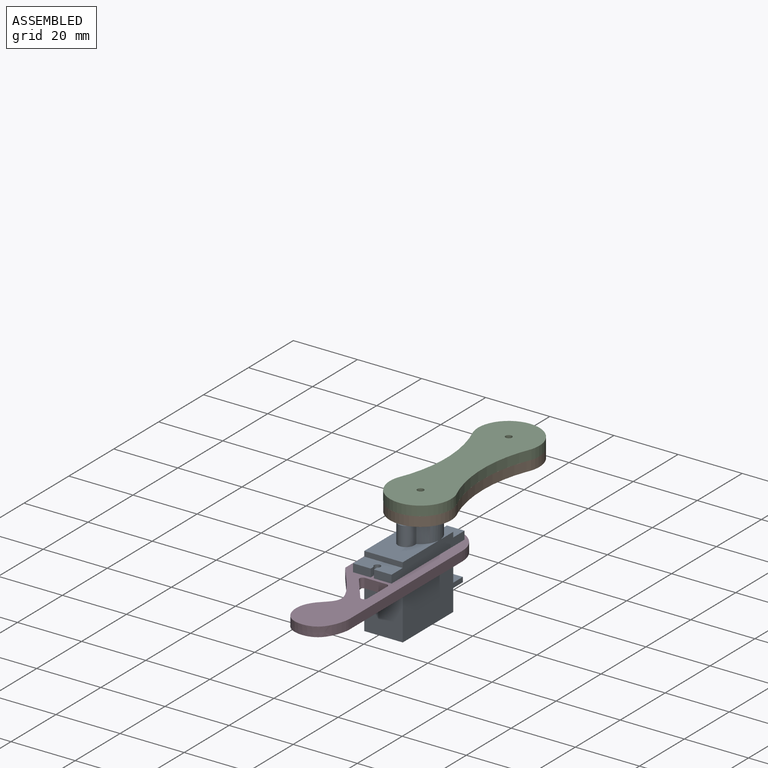
[diagram: assembled view]
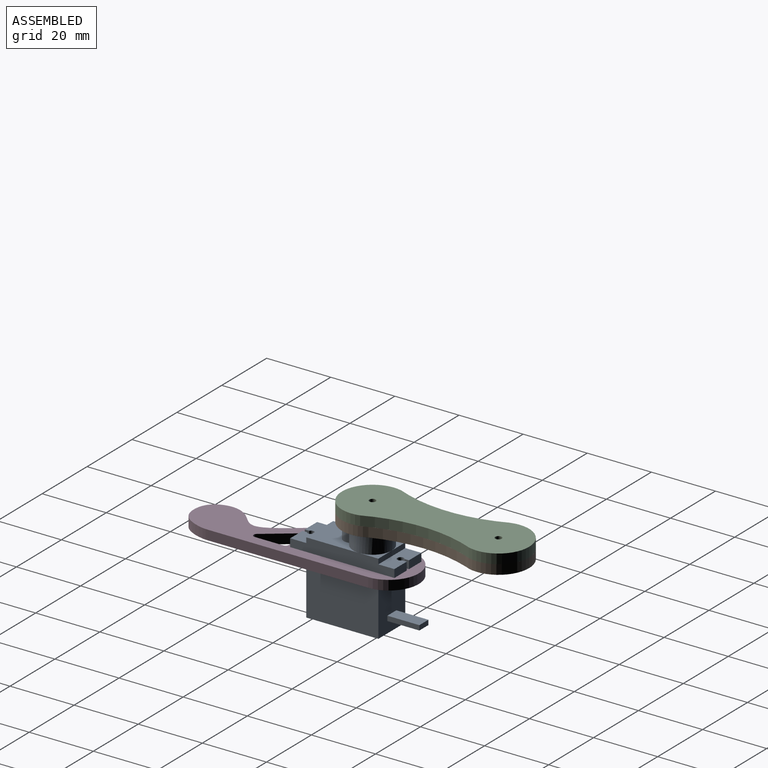
[diagram: assembled view, second angle]
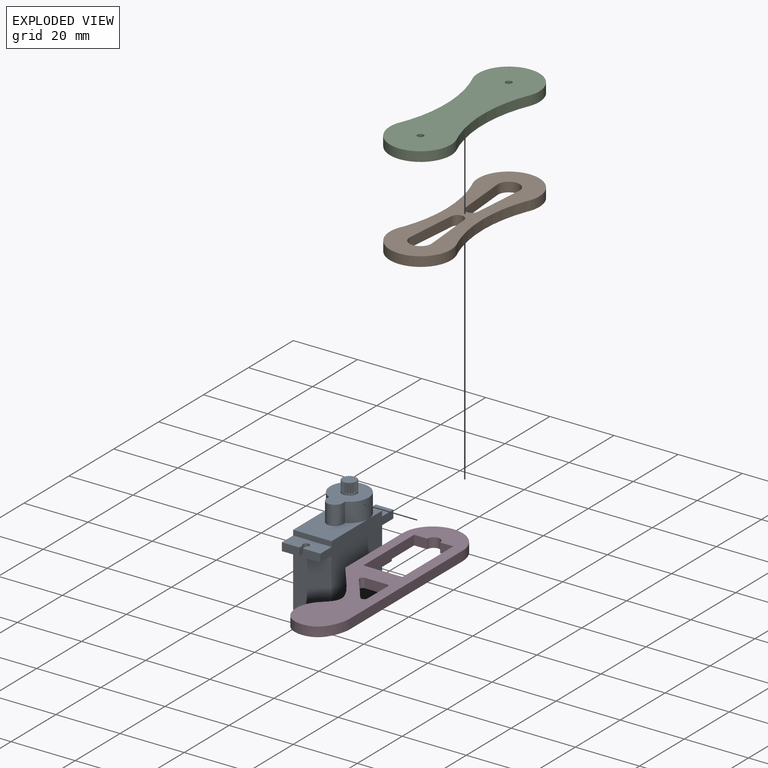
[diagram: exploded view]
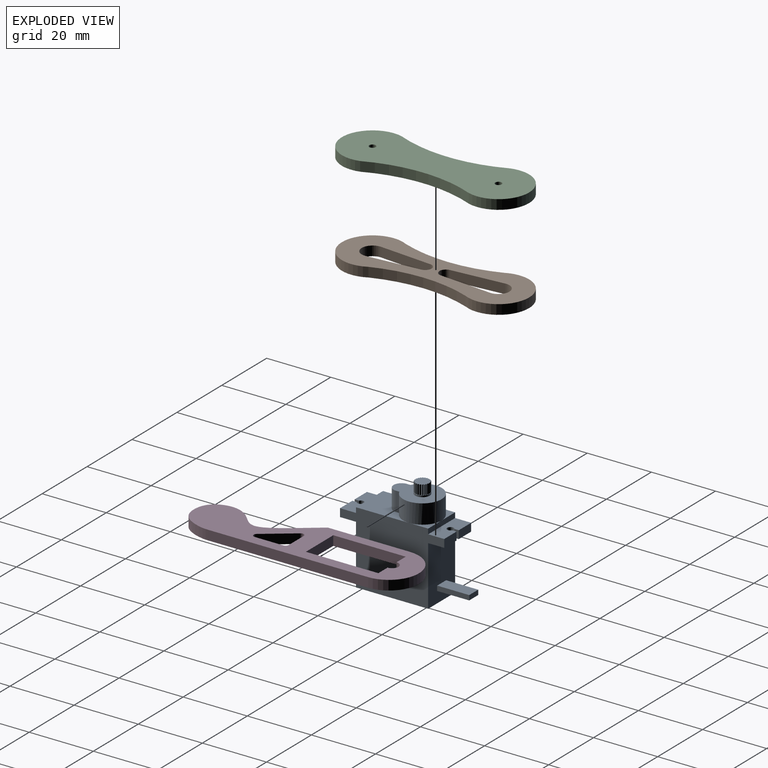
[diagram: exploded view, second angle]
ASSEMBLY  parts=4 mates=3
PART A: 105 faces, bbox 37.5x12x32.1 mm
  f0: plane 18.5x12mm, normal (1,0,0), area 216mm2, adj f11,f17,f21,f99,f100,f101,f102,f103
  f1: plane 12x5mm, normal (0,0,-1), area 55.6mm2, adj f11,f12,f13,f14,f15,f16,f17,f96
  f2: cylinder r=2.27mm len=4.55mm, axis (0,0,-1), area 7.1mm2, adj f3,f94
  f3: plane 15x12mm, normal (0,0,1), area 110mm2, adj f2,f24,f25,f26,f27
  f4: plane 6x6mm, normal (0,0,1), area 7.7mm2, adj f11,f23,f26
  f5: plane 16.5x12mm, normal (0,0,1), area 128.2mm2, adj f11,f17,f22,f24,f25,f26,f27
  f6: plane 6x6mm, normal (0,0,1), area 7.7mm2, adj f17,f23,f26
  f7: plane 12x5mm, normal (0,0,1), area 55.6mm2, adj f11,f12,f13,f14,f15,f16,f17,f22
  f8: cylinder r=1mm len=2.5mm, axis (0,0,-1), area 13.1mm2, adj f9,f19,f20,f21
  f9: plane 2.5x1.38mm, normal (0,-1,0), area 3.5mm2, adj f8,f10,f20,f21
  f10: plane 5.5x2.5mm, normal (1,0,0), area 13.7mm2, adj f9,f11,f20,f21
  f11: plane 32.5x22.6mm, normal (0,1,0), area 533.5mm2, adj f0,f1,f4,f5,f7,f10,f12,f20
  f12: plane 5.5x2.5mm, normal (-1,0,0), area 13.7mm2, adj f1,f7,f11,f13
  f13: plane 2.5x1.28mm, normal (0,-1,0), area 3.2mm2, adj f1,f7,f12,f97
  f14: cylinder r=1mm len=2.5mm, axis (0,0,-1), area 12.6mm2, adj f1,f7,f96,f97
  f15: plane 2.5x1.28mm, normal (0,1,0), area 3.2mm2, adj f1,f7,f16,f96
  f16: plane 5.5x2.5mm, normal (-1,0,0), area 13.7mm2, adj f1,f7,f15,f17
  f17: plane 32.5x22.6mm, normal (0,-1,0), area 533.5mm2, adj f0,f1,f5,f6,f7,f16,f18,f20
  f18: plane 5.5x2.5mm, normal (1,0,0), area 13.7mm2, adj f17,f19,f20,f21
  f19: plane 2.5x1.38mm, normal (0,1,0), area 3.5mm2, adj f8,f18,f20,f21
  f20: plane 12x5mm, normal (0,0,1), area 55.6mm2, adj f8,f9,f10,f11,f17,f18,f19,f23
  f21: plane 12x5mm, normal (0,0,-1), area 55.6mm2, adj f0,f8,f9,f10,f11,f17,f18,f19
  f22: plane 12x1.6mm, normal (-1,0,0), area 19.2mm2, adj f5,f7,f11,f17
  f23: plane 12x1.6mm, normal (1,0,0), area 19.2mm2, adj f4,f6,f11,f17,f20
  f24: cylinder r=2.5mm len=6mm, axis (0,0,-1), area 47.1mm2, adj f3,f5,f25,f27
  f25: plane 6x1.05mm, normal (0,-1,0), area 6.3mm2, adj f3,f5,f24,f26
  f26: cylinder r=6mm len=12mm, axis (0,0,-1), area 195.3mm2, adj f3,f4,f5,f6,f25,f27
  f27: plane 6x1.05mm, normal (0,1,0), area 6.3mm2, adj f3,f5,f24,f26
  f28: plane 3x0.25mm, normal (-0.71,0.71,0), area 1.1mm2, adj f29,f93,f94,f95
  f29: plane 3x0.31mm, normal (0.48,0.88,0), area 1.1mm2, adj f28,f30,f94,f95
  f30: cylinder r=0.05mm len=3mm, axis (0,0,1), area 0.2mm2, adj f29,f31,f94,f95
  f31: plane 3x0.31mm, normal (-0.88,0.48,0), area 1.1mm2, adj f30,f32,f94,f95
  f32: plane 3x0.35mm, normal (0.21,0.98,0), area 1.1mm2, adj f31,f33,f94,f95
  f33: cylinder r=0.05mm len=3mm, axis (0,0,1), area 0.2mm2, adj f32,f34,f94,f95
  f34: plane 3x0.35mm, normal (-0.98,0.21,0), area 1.1mm2, adj f33,f35,f94,f95
  f35: plane 3x0.35mm, normal (-0.07,1,0), area 1.1mm2, adj f34,f36,f94,f95
  f36: cylinder r=0.05mm len=3mm, axis (0,0,1), area 0.2mm2, adj f35,f37,f94,f95
  f37: plane 3x0.35mm, normal (-1,-0.07,0), area 1.1mm2, adj f36,f38,f94,f95
  f38: plane 3x0.33mm, normal (-0.35,0.94,0), area 1.1mm2, adj f37,f39,f94,f95
  f39: cylinder r=0.05mm len=3mm, axis (0,0,1), area 0.2mm2, adj f38,f40,f94,f95
  f40: plane 3x0.33mm, normal (-0.94,-0.35,0), area 1.1mm2, adj f39,f41,f94,f95
  f41: plane 3x0.28mm, normal (-0.6,0.8,0), area 1.1mm2, adj f40,f42,f94,f95
  f42: cylinder r=0.05mm len=3mm, axis (0,0,1), area 0.2mm2, adj f41,f43,f94,f95
  f43: plane 3x0.28mm, normal (-0.8,-0.6,0), area 1.1mm2, adj f42,f44,f94,f95
  f44: plane 3x0.28mm, normal (-0.8,0.6,0), area 1.1mm2, adj f43,f45,f94,f95
  f45: cylinder r=0.05mm len=3mm, axis (0,0,1), area 0.2mm2, adj f44,f46,f94,f95
  f46: plane 3x0.28mm, normal (-0.6,-0.8,0), area 1.1mm2, adj f45,f47,f94,f95
  f47: plane 3x0.33mm, normal (-0.94,0.35,0), area 1.1mm2, adj f46,f48,f94,f95
  f48: cylinder r=0.05mm len=3mm, axis (0,0,1), area 0.2mm2, adj f47,f49,f94,f95
  f49: plane 3x0.33mm, normal (-0.35,-0.94,0), area 1.1mm2, adj f48,f50,f94,f95
  f50: plane 3x0.35mm, normal (-1,0.07,0), area 1.1mm2, adj f49,f51,f94,f95
  f51: cylinder r=0.05mm len=3mm, axis (0,0,1), area 0.2mm2, adj f50,f52,f94,f95
  f52: plane 3x0.35mm, normal (-0.07,-1,0), area 1.1mm2, adj f51,f53,f94,f95
  f53: plane 3x0.35mm, normal (-0.98,-0.21,0), area 1.1mm2, adj f52,f54,f94,f95
  f54: cylinder r=0.05mm len=3mm, axis (0,0,1), area 0.2mm2, adj f53,f55,f94,f95
  f55: plane 3x0.35mm, normal (0.21,-0.98,0), area 1.1mm2, adj f54,f56,f94,f95
  f56: plane 3x0.31mm, normal (-0.88,-0.48,0), area 1.1mm2, adj f55,f57,f94,f95
  f57: cylinder r=0.05mm len=3mm, axis (0,0,1), area 0.2mm2, adj f56,f58,f94,f95
  f58: plane 3x0.31mm, normal (0.48,-0.88,0), area 1.1mm2, adj f57,f59,f94,f95
  f59: plane 3x0.25mm, normal (-0.71,-0.71,0), area 1.1mm2, adj f58,f60,f94,f95
  f60: cylinder r=0.05mm len=3mm, axis (0,0,1), area 0.2mm2, adj f59,f61,f94,f95
  f61: plane 3x0.25mm, normal (0.71,-0.71,0), area 1.1mm2, adj f60,f62,f94,f95
  f62: plane 3x0.31mm, normal (-0.48,-0.88,0), area 1.1mm2, adj f61,f63,f94,f95
  f63: cylinder r=0.05mm len=3mm, axis (0,0,1), area 0.2mm2, adj f62,f64,f94,f95
  f64: plane 3x0.31mm, normal (0.88,-0.48,0), area 1.1mm2, adj f63,f65,f94,f95
  f65: plane 3x0.35mm, normal (-0.21,-0.98,0), area 1.1mm2, adj f64,f66,f94,f95
  f66: cylinder r=0.05mm len=3mm, axis (0,0,1), area 0.2mm2, adj f65,f67,f94,f95
  f67: plane 3x0.35mm, normal (0.98,-0.21,0), area 1.1mm2, adj f66,f68,f94,f95
  f68: plane 3x0.35mm, normal (0.07,-1,0), area 1.1mm2, adj f67,f69,f94,f95
  f69: cylinder r=0.05mm len=3mm, axis (0,0,1), area 0.2mm2, adj f68,f70,f94,f95
  f70: plane 3x0.35mm, normal (1,0.07,0), area 1.1mm2, adj f69,f71,f94,f95
  f71: plane 3x0.33mm, normal (0.35,-0.94,0), area 1.1mm2, adj f70,f72,f94,f95
  f72: cylinder r=0.05mm len=3mm, axis (0,0,1), area 0.2mm2, adj f71,f73,f94,f95
  f73: plane 3x0.33mm, normal (0.94,0.35,0), area 1.1mm2, adj f72,f74,f94,f95
  f74: plane 3x0.28mm, normal (0.6,-0.8,0), area 1.1mm2, adj f73,f75,f94,f95
  f75: cylinder r=0.05mm len=3mm, axis (0,0,1), area 0.2mm2, adj f74,f76,f94,f95
  f76: plane 3x0.28mm, normal (0.8,0.6,0), area 1.1mm2, adj f75,f77,f94,f95
  f77: plane 3x0.28mm, normal (0.8,-0.6,0), area 1.1mm2, adj f76,f78,f94,f95
  f78: cylinder r=0.05mm len=3mm, axis (0,0,1), area 0.2mm2, adj f77,f79,f94,f95
  f79: plane 3x0.28mm, normal (0.6,0.8,0), area 1.1mm2, adj f78,f80,f94,f95
  f80: plane 3x0.33mm, normal (0.94,-0.35,0), area 1.1mm2, adj f79,f81,f94,f95
  f81: cylinder r=0.05mm len=3mm, axis (0,0,1), area 0.2mm2, adj f80,f82,f94,f95
  f82: plane 3x0.33mm, normal (0.35,0.94,0), area 1.1mm2, adj f81,f83,f94,f95
  f83: plane 3x0.35mm, normal (1,-0.07,0), area 1.1mm2, adj f82,f84,f94,f95
  f84: cylinder r=0.05mm len=3mm, axis (0,0,1), area 0.2mm2, adj f83,f85,f94,f95
  f85: plane 3x0.35mm, normal (0.07,1,0), area 1.1mm2, adj f84,f86,f94,f95
  f86: plane 3x0.35mm, normal (0.98,0.21,0), area 1.1mm2, adj f85,f87,f94,f95
  f87: cylinder r=0.05mm len=3mm, axis (0,0,1), area 0.2mm2, adj f86,f88,f94,f95
  f88: plane 3x0.35mm, normal (-0.21,0.98,0), area 1.1mm2, adj f87,f89,f94,f95
  f89: plane 3x0.31mm, normal (0.88,0.48,0), area 1.1mm2, adj f88,f90,f94,f95
  f90: cylinder r=0.05mm len=3mm, axis (0,0,1), area 0.2mm2, adj f89,f91,f94,f95
  f91: plane 3x0.31mm, normal (-0.48,0.88,0), area 1.1mm2, adj f90,f92,f94,f95
  f92: plane 3x0.25mm, normal (0.71,0.71,0), area 1.1mm2, adj f91,f93,f94,f95
  f93: cylinder r=0.05mm len=3mm, axis (0,0,1), area 0.2mm2, adj f28,f92,f94,f95
  f94: plane 4.55x4.55mm, normal (0,0,1), area 2mm2, adj f2,f28,f29,f30,f31,f32,f33,f34
  f95: plane 4.51x4.46mm, normal (0,0,1), area 14.3mm2, adj f28,f29,f30,f31,f32,f33,f34,f35
  f96: cylinder r=0.2mm len=2.5mm, axis (0,0,-1), area 0.5mm2, adj f1,f7,f14,f15
  f97: cylinder r=0.2mm len=2.5mm, axis (0,0,-1), area 0.5mm2, adj f1,f7,f13,f14
  f98: plane 18.5x12mm, normal (-1,0,0), area 222mm2, adj f1,f11,f17,f99
  f99: plane 22.5x12mm, normal (0,0,-1), area 270mm2, adj f0,f11,f17,f98
  f100: plane 10x1.5mm, normal (0,-1,0), area 15mm2, adj f0,f101,f103,f104
  f101: plane 10x4mm, normal (0,0,-1), area 40mm2, adj f0,f100,f102,f104
  f102: plane 10x1.5mm, normal (0,1,0), area 15mm2, adj f0,f101,f103,f104
  f103: plane 10x4mm, normal (0,0,1), area 40mm2, adj f0,f100,f102,f104
  f104: plane 4x1.5mm, normal (1,0,0), area 6mm2, adj f100,f101,f102,f103
PART B: 14 faces, bbox 58.4x19.1x3 mm
  f0: plane 16.28x3mm, normal (0.09,1,0), area 49mm2, adj f1,f11,f12,f13
  f1: cylinder r=2mm len=3.99mm, axis (0,0,-1), area 17.8mm2, adj f0,f2,f12,f13
  f2: plane 16.28x3mm, normal (0.09,-1,0), area 49mm2, adj f1,f11,f12,f13
  f3: plane 16.28x3mm, normal (-0.09,1,0), area 49mm2, adj f4,f9,f12,f13
  f4: cylinder r=3.4mm len=6.8mm, axis (0,0,-1), area 33.8mm2, adj f3,f5,f12,f13
  f5: plane 16.28x3mm, normal (-0.09,-1,0), area 49mm2, adj f4,f9,f12,f13
  f6: cylinder r=9.55mm len=19.1mm, axis (0,0,-1), area 116.7mm2, adj f7,f10,f12,f13
  f7: cylinder r=42.82mm len=30.44mm, axis (0,0,-1), area 93.4mm2, adj f6,f8,f12,f13
  f8: cylinder r=9.55mm len=19.1mm, axis (0,0,-1), area 118.5mm2, adj f7,f10,f12,f13
  f9: cylinder r=2mm len=3.99mm, axis (0,0,-1), area 17.8mm2, adj f3,f5,f12,f13
  f10: cylinder r=42.82mm len=30.44mm, axis (0,0,-1), area 93.4mm2, adj f6,f8,f12,f13
  f11: cylinder r=3.4mm len=6.8mm, axis (0,0,-1), area 33.8mm2, adj f0,f2,f12,f13
  f12: plane 58.38x19.1mm, normal (0,0,1), area 623.3mm2, adj f0,f1,f2,f3,f4,f5,f6,f7
  f13: plane 58.38x19.1mm, normal (0,0,-1), area 623.3mm2, adj f0,f1,f2,f3,f4,f5,f6,f7
PART C: 8 faces, bbox 58.4x19.1x3 mm
  f0: cylinder r=42.82mm len=33.86mm, axis (0,0,1), area 104.4mm2, adj f1,f3,f4,f5
  f1: cylinder r=9.55mm len=19.1mm, axis (0,0,1), area 107.5mm2, adj f0,f2,f4,f5
  f2: cylinder r=42.82mm len=33.86mm, axis (0,0,1), area 104.4mm2, adj f1,f3,f4,f5
  f3: cylinder r=9.55mm len=19.1mm, axis (0,0,1), area 105.5mm2, adj f0,f2,f4,f5
  f4: plane 58.38x19.1mm, normal (0,0,-1), area 843.3mm2, adj f0,f1,f2,f3,f6,f7
  f5: plane 58.38x19.1mm, normal (0,0,1), area 843.3mm2, adj f0,f1,f2,f3,f6,f7
  f6: cylinder r=1mm len=3mm, axis (0,0,1), area 18.8mm2, adj f4,f5
  f7: cylinder r=1mm len=3mm, axis (0,0,1), area 18.8mm2, adj f4,f5
PART D: 18 faces, bbox 18.8x69.9x3 mm
  f0: cylinder r=9.32mm len=18.65mm, axis (0,0,-1), area 87.9mm2, adj f1,f15,f16,f17
  f1: plane 49.86x3mm, normal (-1,0,0), area 149.6mm2, adj f0,f2,f16,f17
  f2: extruded ~34.34x18.65mm, area 173.3mm2, adj f1,f15,f16,f17
  f3: plane 6.67x3mm, normal (0,-1,0), area 20mm2, adj f4,f13,f16,f17
  f4: cylinder r=1mm len=3mm, axis (0,0,-1), area 6.6mm2, adj f3,f5,f16,f17
  f5: plane 8.92x6.67mm, normal (-0.8,0.6,0), area 33.4mm2, adj f4,f6,f16,f17
  f6: cylinder r=1mm len=3mm, axis (0,0,-1), area 7.5mm2, adj f5,f7,f16,f17
  f7: plane 8.92x3mm, normal (1,0,0), area 26.8mm2, adj f6,f13,f16,f17
  f8: plane 4.1x3mm, normal (0,-1,0), area 12.3mm2, adj f9,f14,f16,f17
  f9: cylinder r=2mm len=4mm, axis (0,0,-1), area 18.8mm2, adj f8,f10,f16,f17
  f10: plane 4.1x3mm, normal (0,-1,0), area 12.3mm2, adj f9,f11,f16,f17
  f11: plane 22.6x3mm, normal (-1,0,0), area 67.8mm2, adj f10,f12,f16,f17
  f12: plane 12.2x3mm, normal (0,1,0), area 36.6mm2, adj f11,f14,f16,f17
  f13: cylinder r=1mm len=3mm, axis (0,0,-1), area 4.7mm2, adj f3,f7,f16,f17
  f14: plane 22.6x3mm, normal (1,0,0), area 67.8mm2, adj f8,f12,f16,f17
  f15: plane 25.62x3mm, normal (1,0,0), area 76.9mm2, adj f0,f2,f16,f17
  f16: plane 69.89x18.78mm, normal (0,0,1), area 697.3mm2, adj f0,f1,f2,f3,f4,f5,f6,f7
  f17: plane 69.89x18.78mm, normal (0,0,-1), area 697.3mm2, adj f0,f1,f2,f3,f4,f5,f6,f7
PLACE A rot(axis=(0,0,1),90deg) t=(173.26,106.37,29.09)mm
PLACE B rot(axis=(0.71,-0.71,0),180deg) t=(289.17,210.19,29.09)mm
PLACE C rot(axis=(0.71,-0.71,0),180deg) t=(289.17,210.19,29.09)mm
PLACE D rot(axis=(0,1,0),180deg) t=(297.18,-6.79,15.49)mm
MATE fastened D.f17 <-> A.f21  axis (0,0,1) through (179.26,112.37,15.49)mm
MATE fastened C.f1 <-> B.f4  axis (0,0,-1) through (173.26,145.64,29.09)mm
MATE revolute B.f11 <-> A.f2  axis (0,0,1) through (173.26,106.37,29.09)mm
